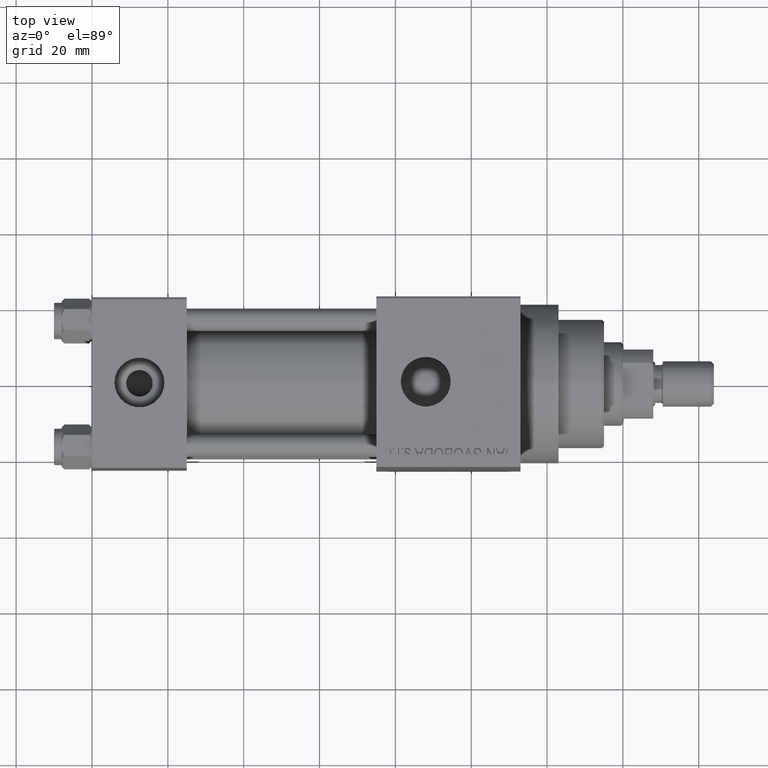
[diagram: clean part render]
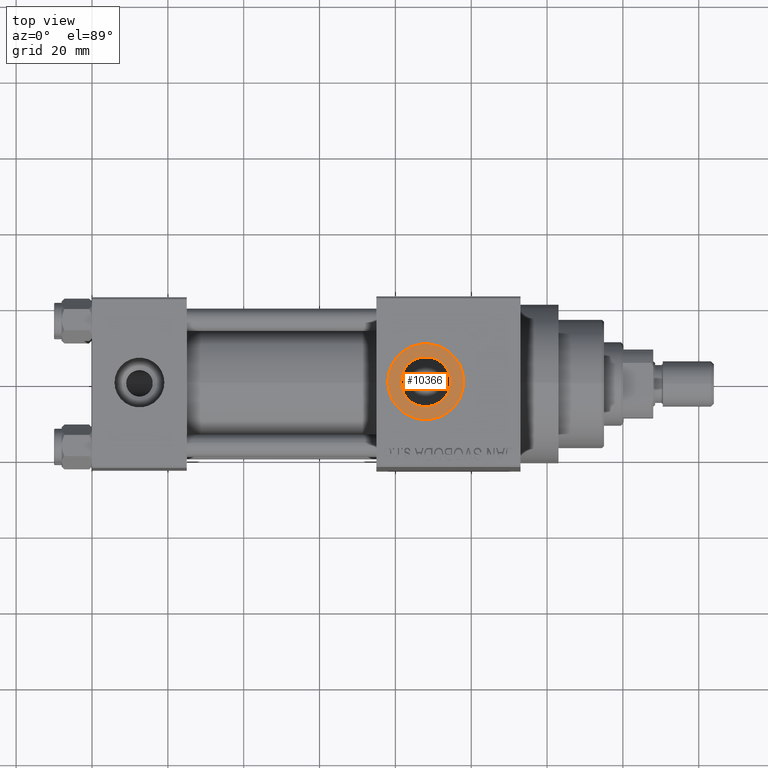
[diagram: same view with one face highlighted and labeled with its STEP entity id]
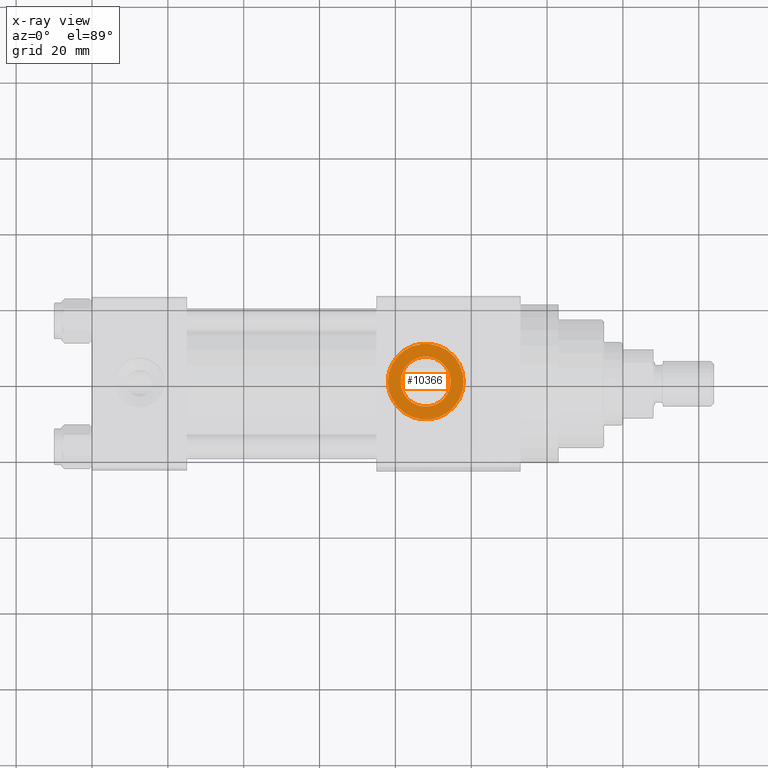
[diagram: x-ray of the same camera — body ghosted, the highlighted face saturated]
A machine part, top view. The second image highlights one B-rep face of the part: STEP entity #10366.
The next image is the same camera in x-ray: the body ghosted, the highlighted face saturated — about 0% of this face is hidden behind the body in this view.
In plain terms, the highlighted planar face has unit normal (0, 0, 1).
Its self-contained STEP definition (entity closure, byte-faithful):
#109 = DIRECTION ( 'NONE',  ( 1.000000000000000000, 0.000000000000000000, 0.000000000000000000 ) ) ;
#331 = EDGE_LOOP ( 'NONE', ( #1768, #9732 ) ) ;
#1587 = EDGE_CURVE ( 'NONE', #42443, #16388, #23340, .T. ) ;
#1768 = ORIENTED_EDGE ( 'NONE', *, *, #18149, .T. ) ;
#2245 = CARTESIAN_POINT ( 'NONE',  ( 88.00000000000001421, 0.000000000000000000, 34.80000000000000426 ) ) ;
#3257 = VERTEX_POINT ( 'NONE', #19511 ) ;
#3967 = DIRECTION ( 'NONE',  ( -0.000000000000000000, -0.000000000000000000, -1.000000000000000000 ) ) ;
#7510 = DIRECTION ( 'NONE',  ( 0.000000000000000000, 0.000000000000000000, 1.000000000000000000 ) ) ;
#7598 = DIRECTION ( 'NONE',  ( 1.000000000000000000, 0.000000000000000000, 0.000000000000000000 ) ) ;
#8305 = DIRECTION ( 'NONE',  ( 1.000000000000000000, 0.000000000000000000, -0.000000000000000000 ) ) ;
#9394 = CARTESIAN_POINT ( 'NONE',  ( 81.42000000000000171, 0.000000000000000000, 34.80000000000000426 ) ) ;
#9732 = ORIENTED_EDGE ( 'NONE', *, *, #42152, .T. ) ;
#10366 = ADVANCED_FACE ( 'NONE', ( #34518, #22994 ), #37657, .T. ) ;
#10806 = CIRCLE ( 'NONE', #29249, 10.00000000000000888 ) ;
#16388 = VERTEX_POINT ( 'NONE', #27503 ) ;
#16662 = VERTEX_POINT ( 'NONE', #9394 ) ;
#18149 = EDGE_CURVE ( 'NONE', #16662, #3257, #28415, .T. ) ;
#18430 = CIRCLE ( 'NONE', #24575, 6.580000000000002736 ) ;
#18582 = CARTESIAN_POINT ( 'NONE',  ( 88.00000000000001421, 0.000000000000000000, 34.80000000000000426 ) ) ;
#18664 = EDGE_LOOP ( 'NONE', ( #38499, #30147 ) ) ;
#19123 = CARTESIAN_POINT ( 'NONE',  ( 88.00000000000001421, 0.000000000000000000, 34.80000000000000426 ) ) ;
#19511 = CARTESIAN_POINT ( 'NONE',  ( 94.58000000000001251, 8.058175938389587461E-16, 34.80000000000000426 ) ) ;
#19850 = DIRECTION ( 'NONE',  ( 0.000000000000000000, 0.000000000000000000, 1.000000000000000000 ) ) ;
#20449 = AXIS2_PLACEMENT_3D ( 'NONE', #41267, #19850, #8305 ) ;
#22994 = FACE_OUTER_BOUND ( 'NONE', #18664, .T. ) ;
#23340 = CIRCLE ( 'NONE', #36418, 10.00000000000000888 ) ;
#24575 = AXIS2_PLACEMENT_3D ( 'NONE', #2245, #46060, #24864 ) ;
#24864 = DIRECTION ( 'NONE',  ( 1.000000000000000000, 0.000000000000000000, 0.000000000000000000 ) ) ;
#27503 = CARTESIAN_POINT ( 'NONE',  ( 78.00000000000000000, 1.224646799147354440E-15, 34.80000000000000426 ) ) ;
#28415 = CIRCLE ( 'NONE', #33016, 6.580000000000002736 ) ;
#29249 = AXIS2_PLACEMENT_3D ( 'NONE', #35753, #46839, #7598 ) ;
#29406 = DIRECTION ( 'NONE',  ( 1.000000000000000000, 0.000000000000000000, 0.000000000000000000 ) ) ;
#30147 = ORIENTED_EDGE ( 'NONE', *, *, #42784, .T. ) ;
#33016 = AXIS2_PLACEMENT_3D ( 'NONE', #19123, #3967, #109 ) ;
#34518 = FACE_BOUND ( 'NONE', #331, .T. ) ;
#35753 = CARTESIAN_POINT ( 'NONE',  ( 88.00000000000001421, 0.000000000000000000, 34.80000000000000426 ) ) ;
#35809 = CARTESIAN_POINT ( 'NONE',  ( 98.00000000000001421, 0.000000000000000000, 34.80000000000000426 ) ) ;
#36418 = AXIS2_PLACEMENT_3D ( 'NONE', #18582, #7510, #29406 ) ;
#37657 = PLANE ( 'NONE',  #20449 ) ;
#38499 = ORIENTED_EDGE ( 'NONE', *, *, #1587, .T. ) ;
#41267 = CARTESIAN_POINT ( 'NONE',  ( 88.00000000000001421, 0.000000000000000000, 34.80000000000000426 ) ) ;
#42152 = EDGE_CURVE ( 'NONE', #3257, #16662, #18430, .T. ) ;
#42443 = VERTEX_POINT ( 'NONE', #35809 ) ;
#42784 = EDGE_CURVE ( 'NONE', #16388, #42443, #10806, .T. ) ;
#46060 = DIRECTION ( 'NONE',  ( -0.000000000000000000, -0.000000000000000000, -1.000000000000000000 ) ) ;
#46839 = DIRECTION ( 'NONE',  ( 0.000000000000000000, 0.000000000000000000, 1.000000000000000000 ) ) ;